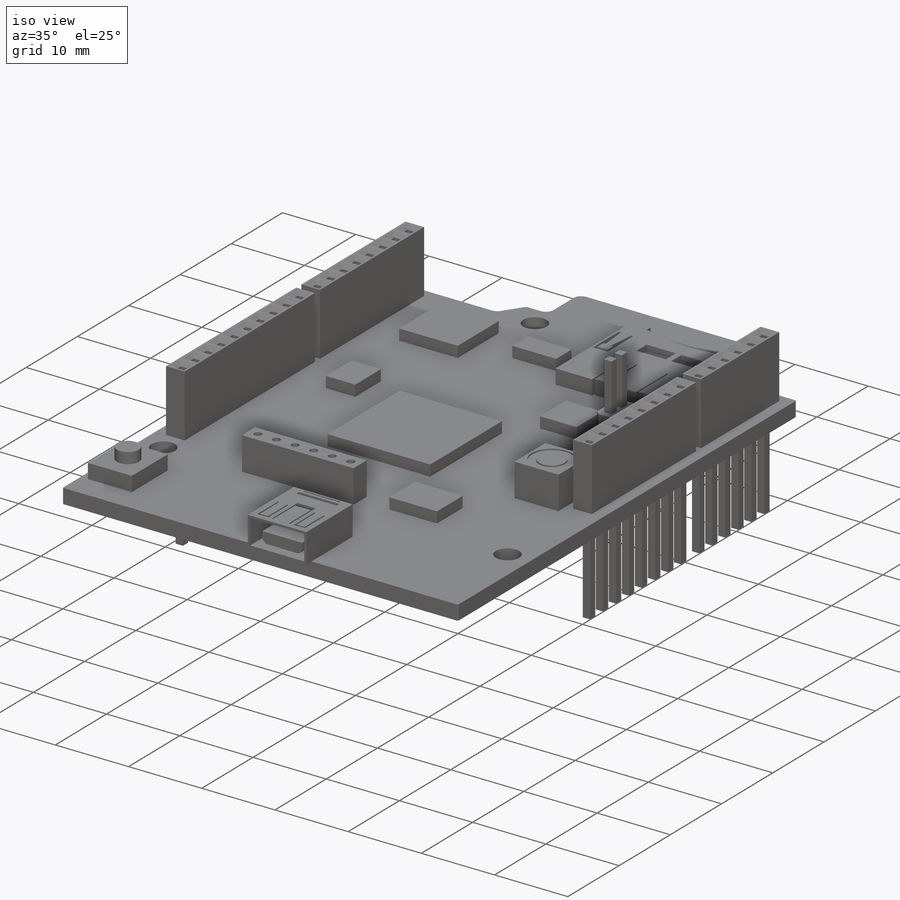
[diagram: iso view]
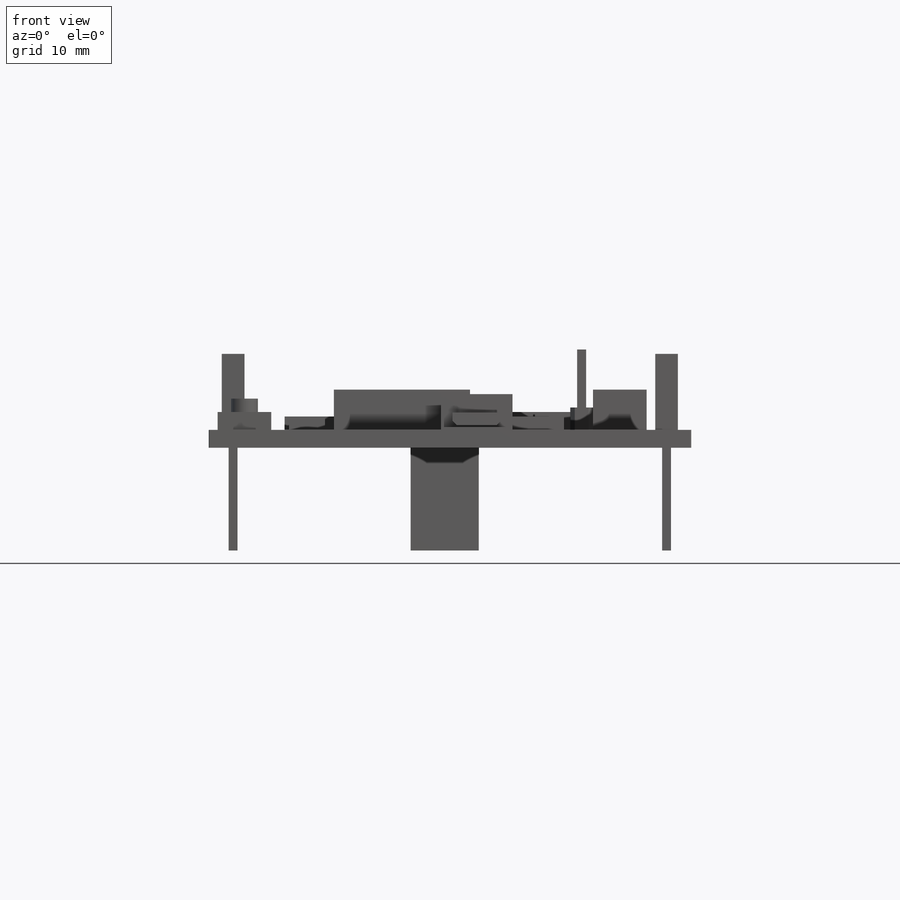
[diagram: front view]
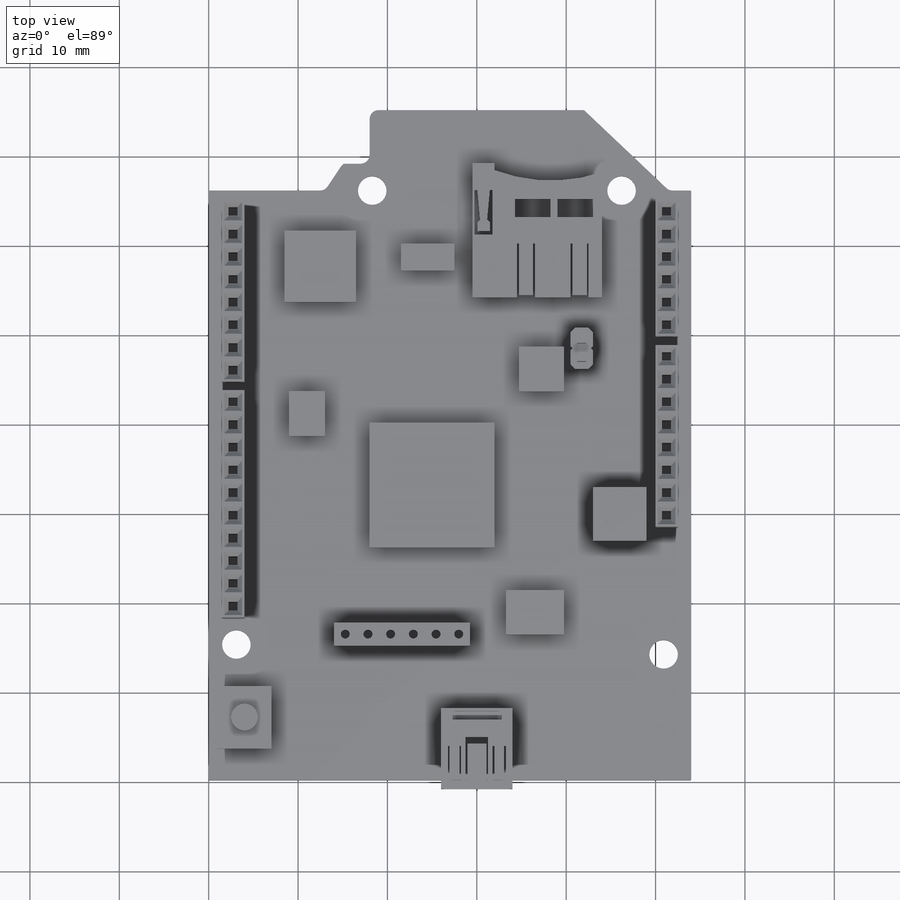
[diagram: top view]
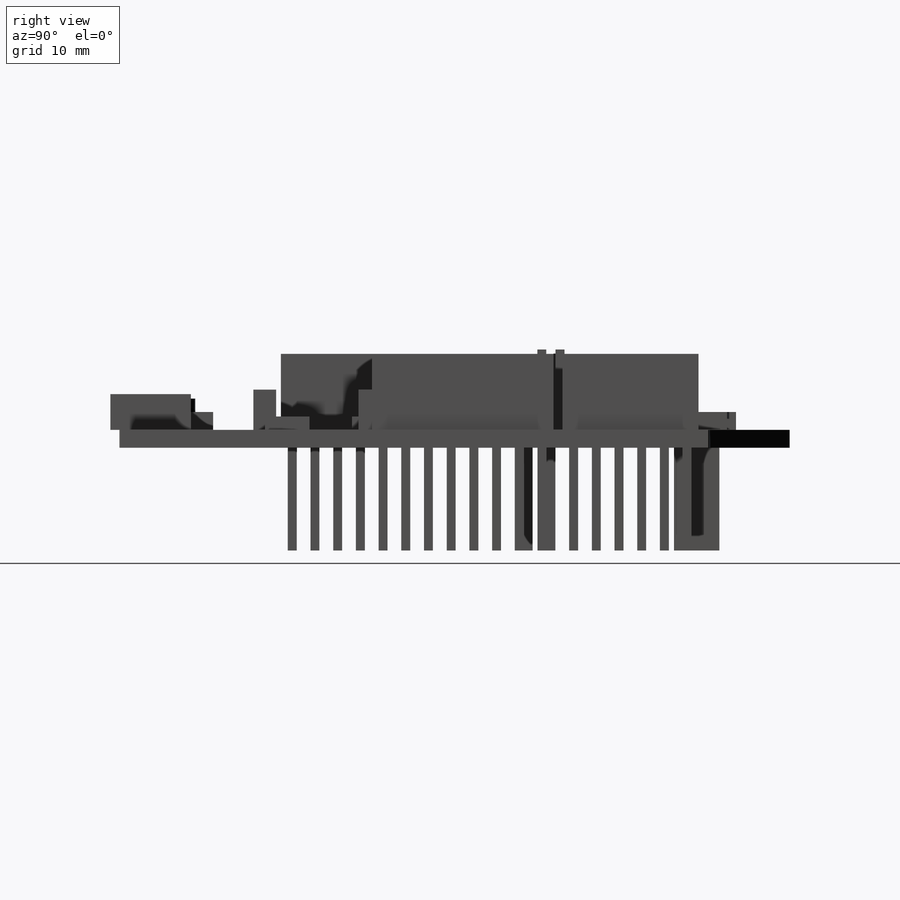
[diagram: right view]
SOLIDWORKS PART (.sldprt)
format: sldprt  version: not decoded by parser v0  size: 1,448,960 bytes
history: native  units: mm
features: sketch x20, extrude x13, plane x8, cut_extrude x7, chamfer x3, material x1, fillet x1 (+10 scaffold rows collapsed)
feature tree (63):
  scaffold x10  (default folders/planes/origin — collapsed)
  material  "Matériau <non spécifié>"
  plane  "Plan de face"
  plane  "Plan de dessus"
  plane  "Plan de droite"
  plane  "Droite"  Offset=54mm
  plane  "Plaque"  Offset=66mm
  plane  "Arriere"  Offset=75mm
  plane  "Platine"  Offset=2mm
  plane  "Borne"  Offset=11.5mm
  sketch  "Esquisse1"  dims[D1=2.5mm D2=24.0mm D3=13.0mm D4=3.0mm D5=5.0mm D6=3.0mm]
  extrude  "Boss.-Extru.1"  [1 undecoded]
  sketch  "Esquisse2"  dims[c1.D1=2.54mm c1.D2=2.54mm c1.D3=15.7mm c1.D4=21.0mm c1.D5=25.86mm c1.D6=20.78mm c2.D1=2.54mm c2.D7=50.5mm c2.D8=1.27mm c2.D9=1.27mm c2.D10=62.5mm c2.D11=44.7mm c2.D12=1.27mm c2.D13=38.8mm c2.D14=1.0mm c2.D15=0.87mm c3.D13=21.65mm c3.D16=16.7mm c3.D8=1.2mm c3.D7=48.5mm c3.D2=1.5mm c3.D9=2.54mm c3.D10=1.0mm c3.D11=1.0mm c3.D12=1.0mm c3.D18=2.54mm c3.D19=~1.414214mm c4.D19=135.0deg c4.D18=1.0mm c4.D11=1.0mm c4.D12=1.27mm c4.D20=2.54mm c4.D21=1.0mm c5.D18=1.0mm c5.D22=2.54mm c5.D21=1.0mm c5.D11=1.27mm c5.D5=1.27mm c5.D12=25.4mm c5.D6=1.27mm c5.D13=1.27mm c5.D15=1.0mm c6.D18=20.32mm c6.D3=1.0mm c6.D14=1.27mm c6.D16=1.27mm c6.D21=2.54mm c6.D24=2.54mm c6.D25=1.27mm c6.D17=10.0 c6.D19=8.0 c6.D4=6.0 c6.D23=8.0]
  extrude  "Boss.-Extru.2"  Depth=8.5mm
  sketch  "Esquisse3"  dims[D6=3.2mm D1=50.8mm D2=51.9mm D3=27.9mm D4=4.7mm D5=15.2mm D7=3.1mm D8=3.1mm]
  cut_extrude  "Enlèv. mat.-Extru.1"  [1 undecoded]
  sketch  "Esquisse4"  dims[c1.D1=2.34mm c1.D2=2.54mm c1.D3=~14.877024mm c2.D3=~0.424693deg c3.D3=1.27mm c3.D4=1.27mm c3.D5=1.0mm c3.D6=1.27mm c3.D9=2.54mm c3.D10=1.27mm c3.D11=18.6mm c3.D7=3.0 c3.D8=2.0]
  extrude  "Boss.-Extru.3"  [1 undecoded]
  sketch  "Esquisse5"  dims[D6=1.0mm D1=2.54mm D2=14.0mm D3=15.0mm D4=15.24mm D5=1.27mm D8=2.54mm D9=1.27mm D7=6.0]
  extrude  "Boss.-Extru.4"  Depth=4.5mm
  sketch  "Esquisse6"  dims[D1=4.0mm D2=6.5mm D3=5.0mm D4=14.0mm D5=26.0mm D6=22.0mm D7=5.0mm D8=3.5mm D9=4.0mm D10=5.0mm D11=5.0mm D12=10.0mm D13=8.0mm D14=1.5mm D15=6.0mm D16=3.0mm D17=1.5mm D18=5.0mm]
  extrude  "Boss.-Extru.5"  Depth=1.5mm
  sketch  "Esquisse7"  dims[D1=7.0mm D2=6.0mm D3=3.5mm D4=1.0mm]
  extrude  "Boss.-Extru.6"  Depth=2mm
  sketch  "Esquisse8"  dims[D1=3.0mm]
  extrude  "Boss.-Extru.7"  Depth=3.5mm
  sketch  "Esquisse9"  dims[D1=6.0mm D2=1.5mm D3=5.0mm]
  extrude  "Boss.-Extru.8"  Depth=4.5mm
  sketch  "Esquisse10"  dims[D1=3.5mm D2=5.5mm]
  cut_extrude  "Enlèv. mat.-Extru.2"  Depth=0.2mm
  sketch  "Esquisse12"
  extrude  "Boss.-Extru.9"  [1 undecoded]
  sketch  "Esquisse13"  dims[D1=0.5mm D2=0.5mm D3=2.54mm D4=11.0mm]
  extrude  "Boss.-Extru.10"  Depth=2.5mm
  sketch  "Esquisse14"  dims[D1=1.0mm]
  extrude  "Boss.-Extru.11"  Depth=9mm
  sketch  "Esquisse15"  dims[D1=15.0mm D2=14.5mm D3=10.0mm]
  extrude  "Boss.-Extru.12"  Depth=2mm
  sketch  "Esquisse16"  dims[c1.D1=~18.033551mm c1.D5=~17.924859mm c2.D1=1.0mm c2.D2=2.5mm c2.D3=16.0mm c2.D4=0.775mm c2.D6=2.0mm c2.D7=4.0mm c2.D8=1.0mm c2.D9=0.75mm c2.D10=4.0mm c2.D11=2.0mm c2.D12=0.25mm c2.D13=3.0mm c2.D14=5.0mm c2.D15=0.3mm c2.D16=0.3mm c2.D17=0.4mm c2.D18=1.0mm c2.D19=0.2mm c2.D20=0.25mm c2.D21=1.5mm c2.D22=2.0mm c2.D23=6.0mm c2.D24=6.0mm]
  cut_extrude  "Enlèv. mat.-Extru.3"  [1 undecoded]
  sketch  "Esquisse17"  dims[D1=0.75mm D2=0.75mm D3=0.75mm]
  cut_extrude  "Enlèv. mat.-Extru.4"  Depth=0.75mm
  sketch  "Esquisse18"  dims[D1=8.0mm D2=9.0mm D3=1.0mm D4=20.0mm]
  extrude  "Boss.-Extru.14"  Depth=4mm
  sketch  "Esquisse19"  dims[D1=0.75mm D2=0.2mm D3=0.75mm D4=0.75mm D5=1.5mm D6=2.5mm D7=4.0mm D8=5.0mm D9=0.75mm D10=0.5mm D11=0.2mm D12=0.2mm D13=5.5mm D14=5.0mm D15=0.4mm]
  cut_extrude  "Enlèv. mat.-Extru.5"  Depth=0.5mm
  sketch  "Esquisse20"  dims[D1=0.3mm D2=0.3mm D3=0.3mm D4=0.2mm D5=1.75mm D6=1.0mm]
  cut_extrude  "Enlèv. mat.-Extru.6"  Depth=0.3mm
  cut_extrude  "Enlèv. mat.-Extru.7"  [1 undecoded]
  sketch  "Esquisse20<2>"
  chamfer  "Chanfrein1"  Distance=0.1mm Angle=45deg
  chamfer  "Chanfrein2"  Distance=0.5mm Angle=45deg
  chamfer  "Chanfrein3"  Distance=0.5mm Angle=45deg
  fillet  "Congé1"  Radius=1mm
decode coverage: 36 of 44 modeling features carry decoded parameters
note: ~ marks probable driven/reference dimensions
note: 6 parameter values undecoded
summary: no parameter record found for 6 features
note: suppression state not decoded; provenance and decode notes live in map.json
